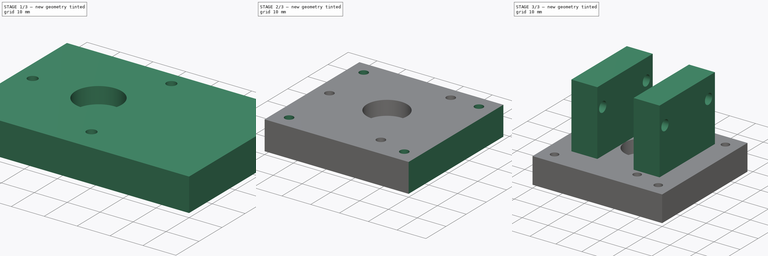
[diagram: build sequence overview — one tinted view per stage of 3, left to right]
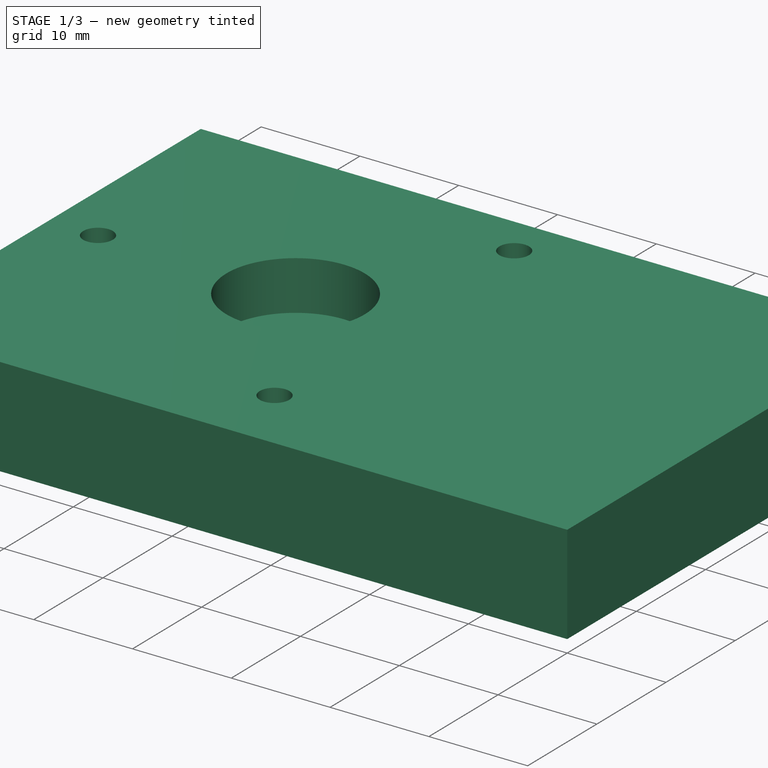
[diagram: stage 1 of 3 — iso view after this stage's code; geometry added in this stage tinted green]
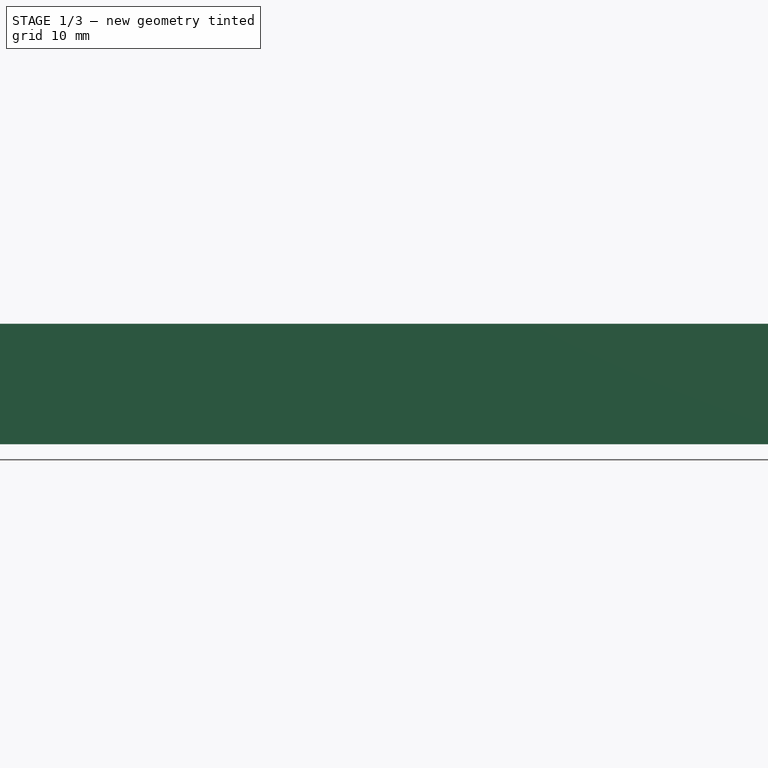
[diagram: stage 1 of 3 — front view after this stage's code; geometry added in this stage tinted green]
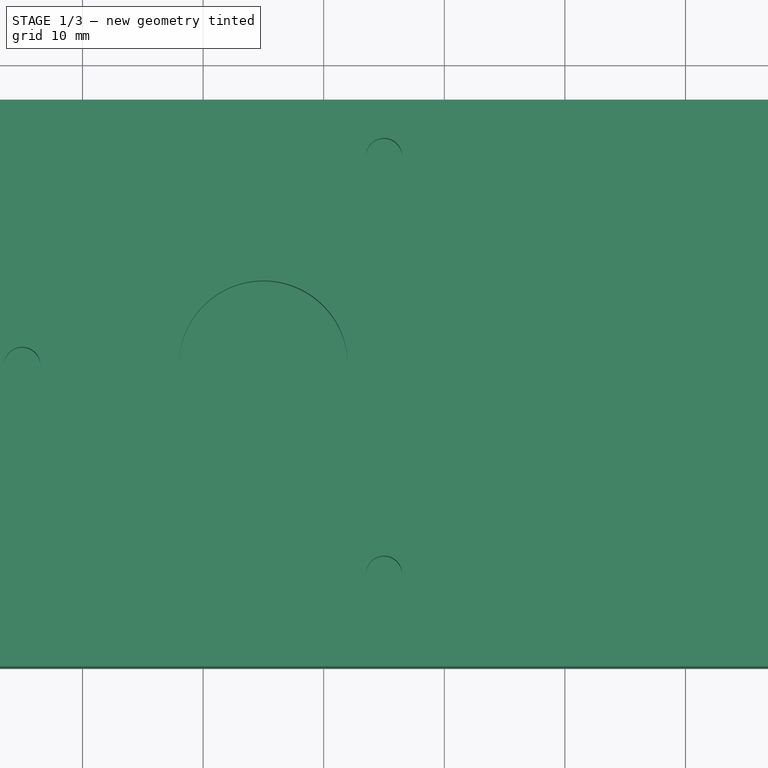
[diagram: stage 1 of 3 — top view after this stage's code; geometry added in this stage tinted green]
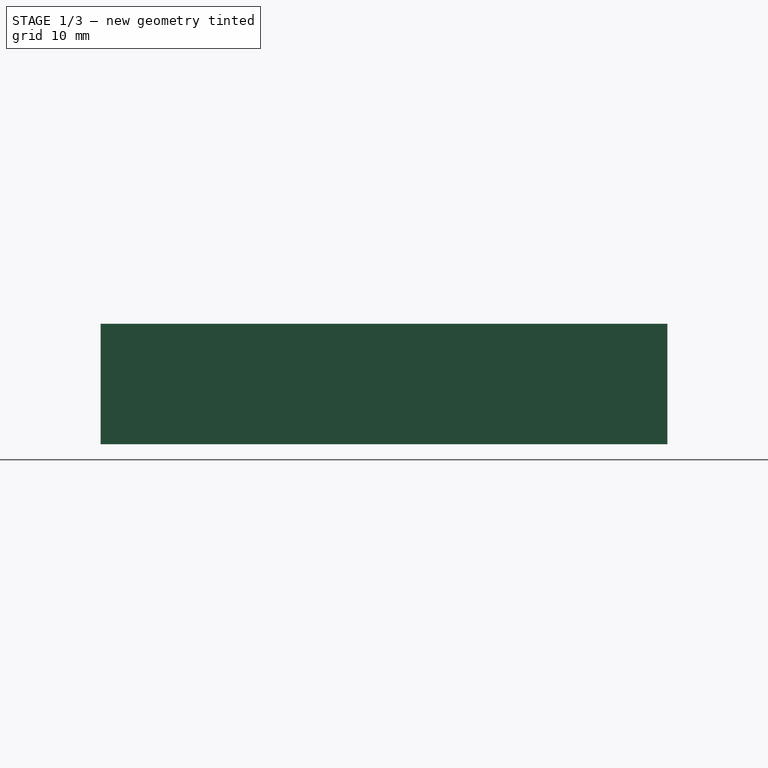
[diagram: stage 1 of 3 — right view after this stage's code; geometry added in this stage tinted green]
FCSTD DOCUMENT  (FreeCAD 0.16R6707 (Git))
Label: support_lanceur
License: All rights reserved
LicenseURL: http://en.wikipedia.org/wiki/All_rights_reserved
objects: Sketcher::SketchObject×5, PartDesign::Pocket×3, PartDesign::Pad×2
note: 15 computed .brp shape members not serialized (recipe doc carries the construction recipe); baked Part::Feature solids carry a one-line shape summary decoded from their .brp

FEATURE [Sketcher::SketchObject] Sketch
  sketch-geometry (4):
    g0: LineSegment StartX=0 StartY=0 StartZ=0 EndX=70 EndY=0 EndZ=0
    g1: LineSegment StartX=70 StartY=0 StartZ=0 EndX=70 EndY=47 EndZ=0
    g2: LineSegment StartX=70 StartY=47 StartZ=0 EndX=0 EndY=47 EndZ=0
    g3: LineSegment StartX=0 StartY=47 StartZ=0 EndX=0 EndY=0 EndZ=0
  constraints (11):
    c: Coincident(g0,g1)
    c: Coincident(g1,g2)
    c: Coincident(g2,g3)
    c: Coincident(g3,g0)
    c: Horizontal(g0)
    c: Horizontal(g2)
    c: Vertical(g1)
    c: Vertical(g3)
    c: Coincident(g0,g-1)
    c: Distance(g3) = 47
    c: Distance(g2) = 70
FEATURE [PartDesign::Pad] Pad
  Length = 10
  Length2 = 100
  Sketch = -> Sketch
  Type = 0
FEATURE [Sketcher::SketchObject] Sketch001
  Placement = pos=(0,0,10) rot=(0,0,1;0rad)
  Support = -> Pad [Face6]
  sketch-geometry (7):
    g0: Circle CenterX=25 CenterY=25 CenterZ=0 NormalX=0 NormalY=0 NormalZ=1 Radius=7
    g1: Circle CenterX=5 CenterY=25 CenterZ=0 NormalX=0 NormalY=0 NormalZ=1 Radius=1.5
    g2: Circle CenterX=35 CenterY=42.3205 CenterZ=0 NormalX=0 NormalY=0 NormalZ=1 Radius=1.5
    g3: Circle CenterX=35 CenterY=7.67949 CenterZ=0 NormalX=0 NormalY=0 NormalZ=1 Radius=1.5
    g4: LineSegment [constr] StartX=5 StartY=25 StartZ=0 EndX=25 EndY=25 EndZ=0
    g5: LineSegment [constr] StartX=25 StartY=25 StartZ=0 EndX=35 EndY=42.3205 EndZ=0
    g6: LineSegment [constr] StartX=25 StartY=25 StartZ=0 EndX=35 EndY=7.67949 EndZ=0
  constraints (18):
    c: DistanceY(g0) = 25
    c: DistanceX(g0) = 25
    c: Radius(g0) = 7
    c: Coincident(g4,g1)
    c: Coincident(g4,g0)
    c: Horizontal(g4)
    c: Coincident(g5,g0)
    c: Coincident(g5,g2)
    c: Coincident(g6,g0)
    c: Coincident(g6,g3)
    c: Angle(g5,g4) = 2.0944
    c: Angle(g6,g5) = 2.0944
    c: Distance(g4) = 20
    c: Distance(g5) = 20
    c: Distance(g6) = 20
    c: Radius(g1) = 1.5
    c: Equal(g1,g2)
    c: Equal(g1,g3)
FEATURE [PartDesign::Pocket] Pocket
  Length = 5
  Sketch = -> Sketch001
  Type = 0
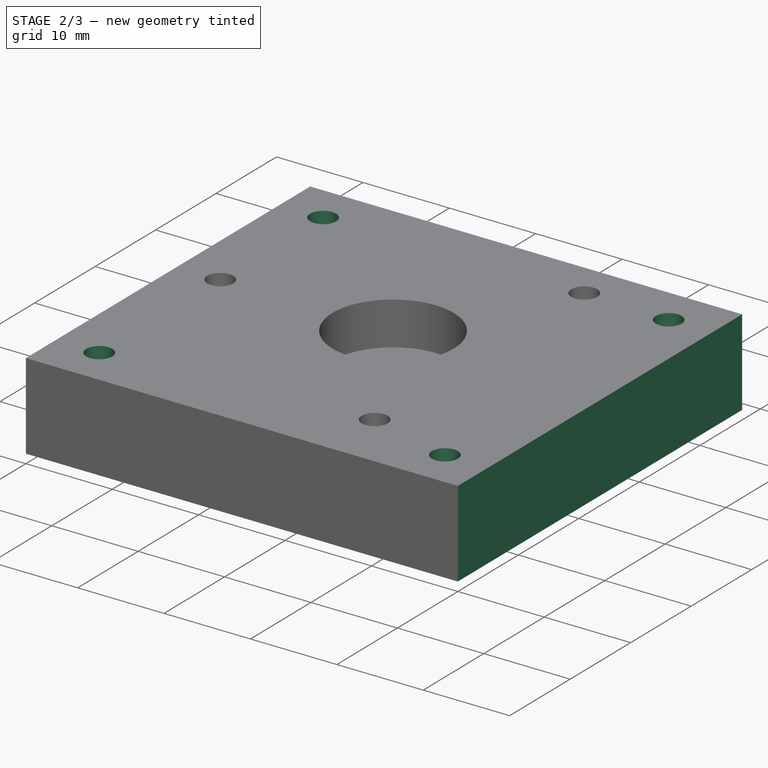
[diagram: stage 2 of 3 — iso view after this stage's code; geometry added in this stage tinted green]
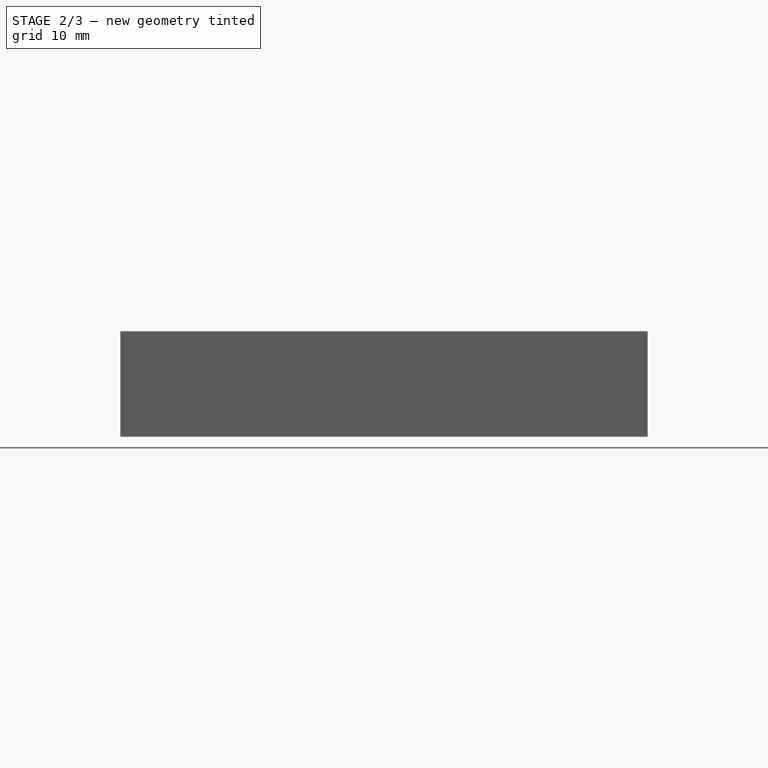
[diagram: stage 2 of 3 — front view after this stage's code; geometry added in this stage tinted green]
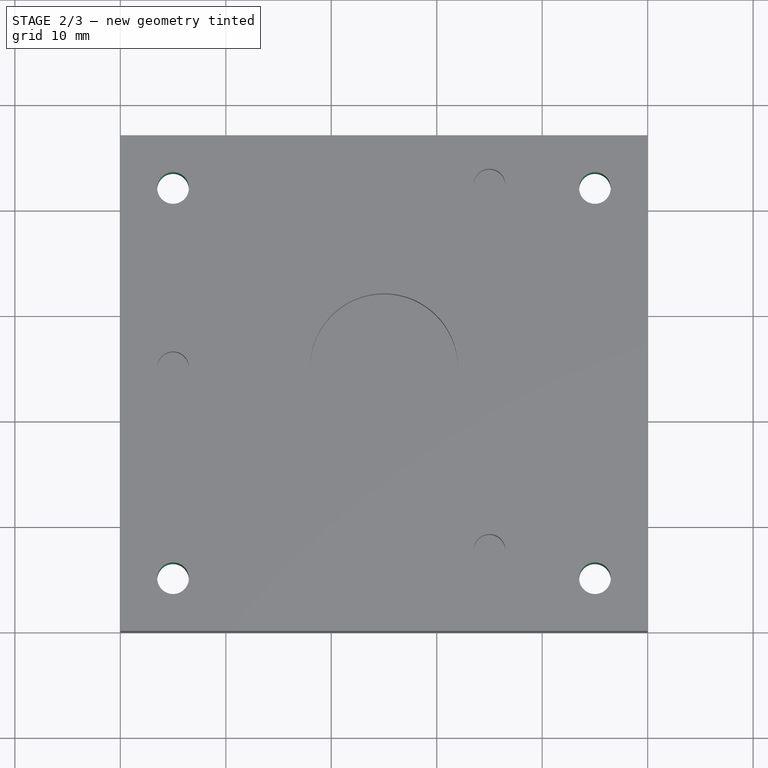
[diagram: stage 2 of 3 — top view after this stage's code; geometry added in this stage tinted green]
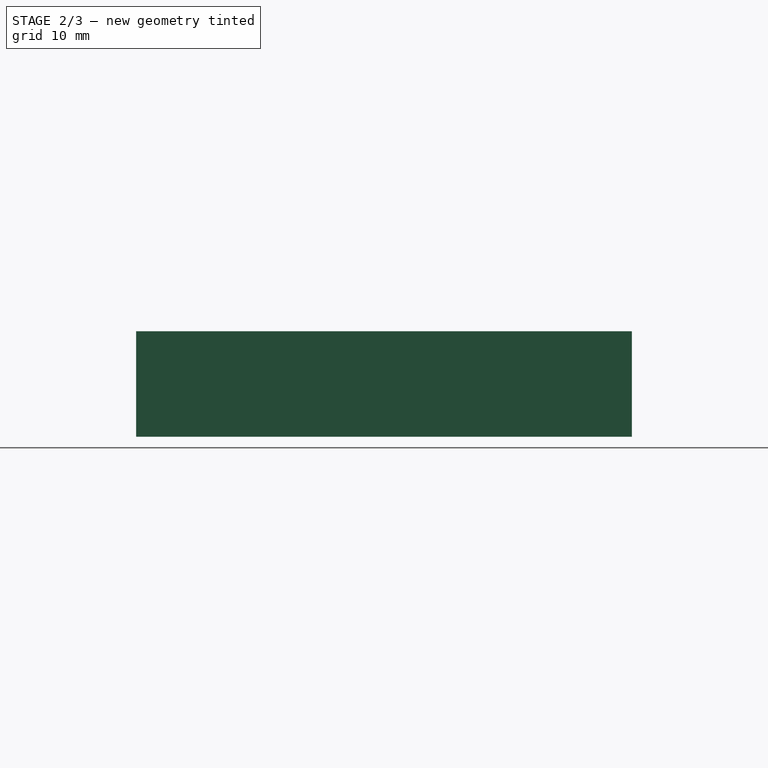
[diagram: stage 2 of 3 — right view after this stage's code; geometry added in this stage tinted green]
FEATURE [Sketcher::SketchObject] Sketch002
  Placement = pos=(0,0,10) rot=(0,0,1;0rad)
  Support = -> Pocket [Face5]
  sketch-geometry (10):
    g0: LineSegment StartX=70 StartY=50 StartZ=0 EndX=50 EndY=50 EndZ=0
    g1: LineSegment StartX=50 StartY=50 StartZ=0 EndX=50 EndY=-20 EndZ=0
    g2: LineSegment StartX=50 StartY=-20 StartZ=0 EndX=70 EndY=-20 EndZ=0
    g3: LineSegment StartX=70 StartY=-20 StartZ=0 EndX=70 EndY=50 EndZ=0
    g4: GeomPoint [constr] X=0 Y=47 Z=0
    g5: Circle CenterX=5 CenterY=42 CenterZ=0 NormalX=0 NormalY=0 NormalZ=1 Radius=1.5
    g6: Circle CenterX=5 CenterY=5 CenterZ=0 NormalX=0 NormalY=0 NormalZ=1 Radius=1.5
    g7: Circle CenterX=45 CenterY=5 CenterZ=0 NormalX=0 NormalY=0 NormalZ=1 Radius=1.5
    g8: Circle CenterX=45 CenterY=42 CenterZ=0 NormalX=0 NormalY=0 NormalZ=1 Radius=1.5
    g9: GeomPoint [constr] X=50 Y=0 Z=0
  constraints (28):
    c: Coincident(g0,g1)
    c: Coincident(g1,g2)
    c: Coincident(g2,g3)
    c: Coincident(g3,g0)
    c: Horizontal(g0)
    c: Horizontal(g2)
    c: Vertical(g1)
    c: Vertical(g3)
    c: DistanceX(g0) = 70
    c: DistanceY(g0) = 50
    c: Distance(g1) = 70
    c: Distance(g2) = 20
    c: PointOnObject(g4,g-2)
    c: DistanceY(g4) = 47
    c: Radius(g7) = 1.5
    c: Equal(g7,g6)
    c: Equal(g7,g5)
    c: DistanceX(g5) = 5
    c: DistanceY(g5,g4) = 5
    c: DistanceX(g6) = 5
    c: DistanceY(g6) = 5
    c: DistanceY(g7) = 5
    c: Radius(g8) = 1.5
    c: DistanceY(g5,g8) = 0
    c: DistanceX(g8,g7) = 0
    c: PointOnObject(g9,g-1)
    c: DistanceX(g9) = 50
    c: DistanceX(g7,g9) = 5
FEATURE [PartDesign::Pocket] Pocket001
  Length = 5
  Sketch = -> Sketch002
  Type = 1
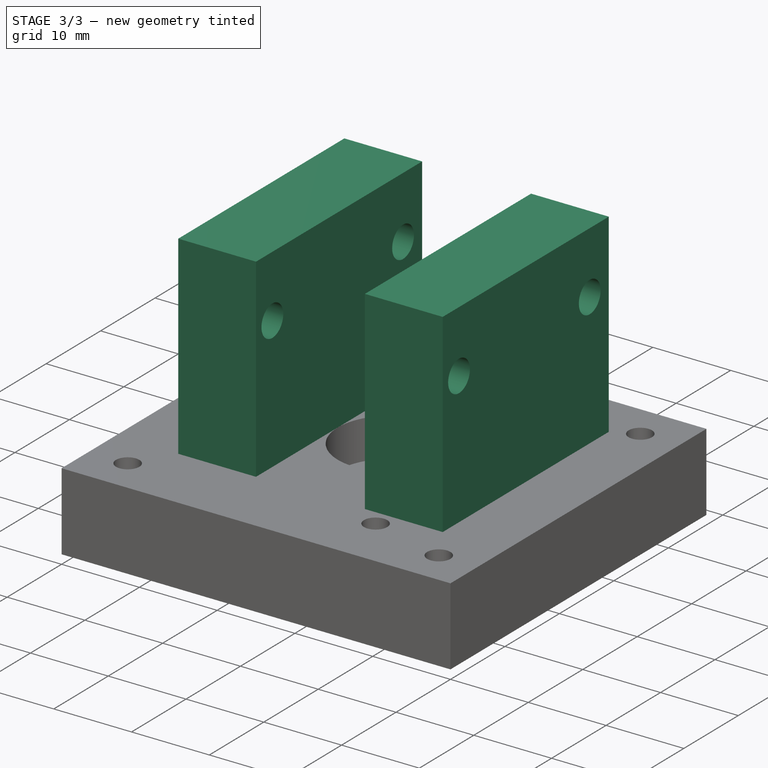
[diagram: stage 3 of 3 — iso view after this stage's code; geometry added in this stage tinted green]
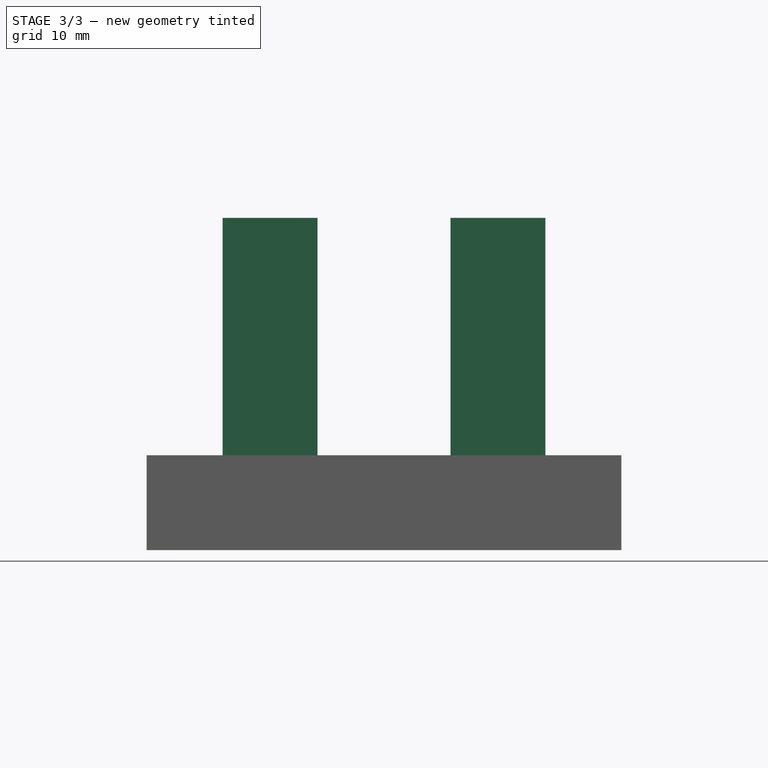
[diagram: stage 3 of 3 — front view after this stage's code; geometry added in this stage tinted green]
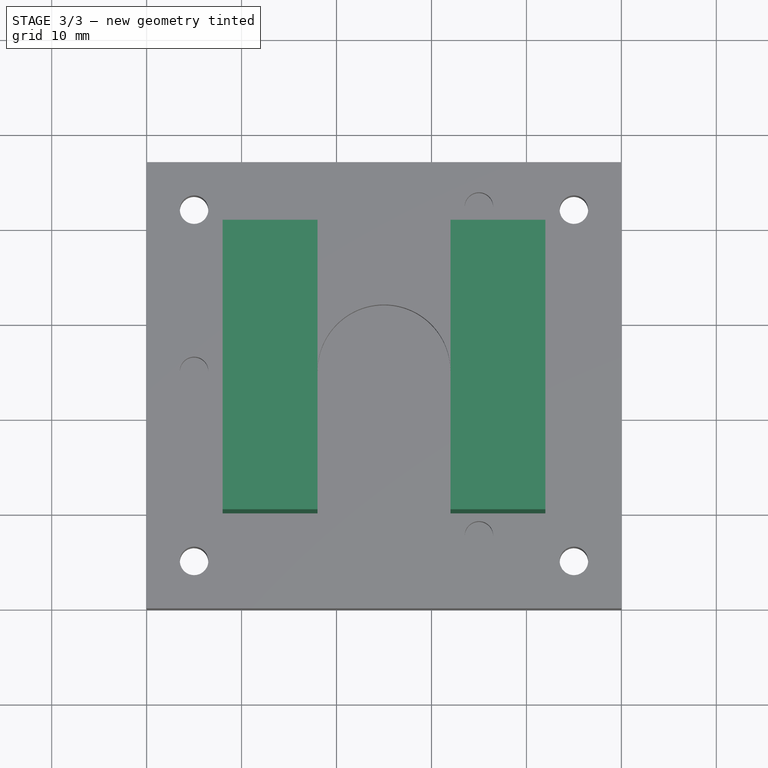
[diagram: stage 3 of 3 — top view after this stage's code; geometry added in this stage tinted green]
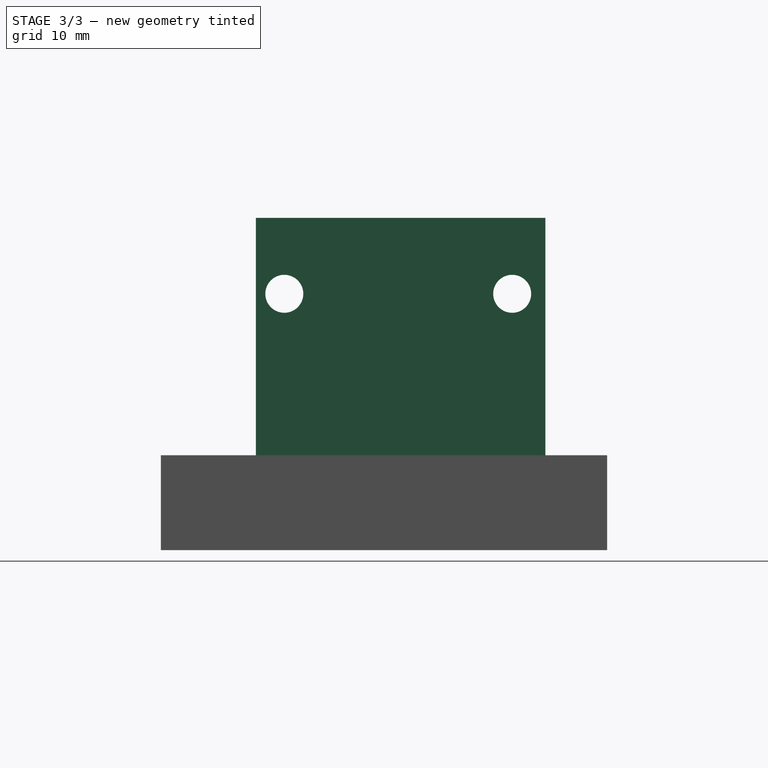
[diagram: stage 3 of 3 — right view after this stage's code; geometry added in this stage tinted green]
FEATURE [Sketcher::SketchObject] Sketch003
  Placement = pos=(0,0,10) rot=(0,0,1;0rad)
  Support = -> Pocket001 [Face4]
  sketch-geometry (10):
    g0: LineSegment StartX=8 StartY=40.5 StartZ=0 EndX=18 EndY=40.5 EndZ=0
    g1: LineSegment StartX=18 StartY=40.5 StartZ=0 EndX=18 EndY=10 EndZ=0
    g2: LineSegment StartX=18 StartY=10 StartZ=0 EndX=8 EndY=10 EndZ=0
    g3: LineSegment StartX=8 StartY=10 StartZ=0 EndX=8 EndY=40.5 EndZ=0
    g4: LineSegment StartX=32 StartY=40.5 StartZ=0 EndX=42 EndY=40.5 EndZ=0
    g5: LineSegment StartX=42 StartY=40.5 StartZ=0 EndX=42 EndY=10 EndZ=0
    g6: LineSegment StartX=42 StartY=10 StartZ=0 EndX=32 EndY=10 EndZ=0
    g7: LineSegment StartX=32 StartY=10 StartZ=0 EndX=32 EndY=40.5 EndZ=0
    g8: GeomPoint [constr] X=0 Y=23.5 Z=0
    g9: GeomPoint [constr] X=25 Y=23.5 Z=0
  constraints (28):
    c: Coincident(g0,g1)
    c: Coincident(g1,g2)
    c: Coincident(g2,g3)
    c: Coincident(g3,g0)
    c: Horizontal(g0)
    c: Horizontal(g2)
    c: Vertical(g1)
    c: Vertical(g3)
    c: Coincident(g4,g5)
    c: Coincident(g5,g6)
    c: Coincident(g6,g7)
    c: Coincident(g7,g4)
    c: Horizontal(g4)
    c: Horizontal(g6)
    c: Vertical(g5)
    c: Vertical(g7)
    c: DistanceY(g0,g4) = 0
    c: DistanceY(g1,g6) = 0
    c: Distance(g0) = 10
    c: Distance(g4) = 10
    c: Distance(g1) = 30.5
    c: DistanceY(g8) = 23.5
    c: DistanceX(g8) = 0
    c: DistanceY(g8,g0) = 17
    c: DistanceY(g9,g8) = 0
    c: DistanceX(g9) = 25
    c: DistanceX(g0,g9) = 7
    c: DistanceX(g9,g4) = 7
FEATURE [PartDesign::Pad] Pad001
  Length = 25
  Length2 = 100
  Sketch = -> Sketch003
  Type = 0
FEATURE [Sketcher::SketchObject] Sketch005
  Placement = pos=(42,0,0) rot=(0.57735,0.57735,0.57735;2.0944rad)
  Support = -> Pad001 [Face19]
  sketch-geometry (3):
    g0: Circle CenterX=13 CenterY=27 CenterZ=0 NormalX=0 NormalY=0 NormalZ=1 Radius=2
    g1: Circle CenterX=37 CenterY=27 CenterZ=0 NormalX=0 NormalY=0 NormalZ=1 Radius=2
    g2: GeomPoint [constr] X=25 Y=27 Z=0
  constraints (8):
    c: Radius(g0) = 2
    c: Equal(g0,g1)
    c: DistanceY(g0,g1) = 0
    c: DistanceY(g0) = 27
    c: DistanceX(g2) = 25
    c: DistanceY(g2) = 27
    c: DistanceX(g0,g2) = 12
    c: DistanceX(g2,g1) = 12
FEATURE [PartDesign::Pocket] Pocket002
  Length = 5
  Sketch = -> Sketch005
  Type = 1
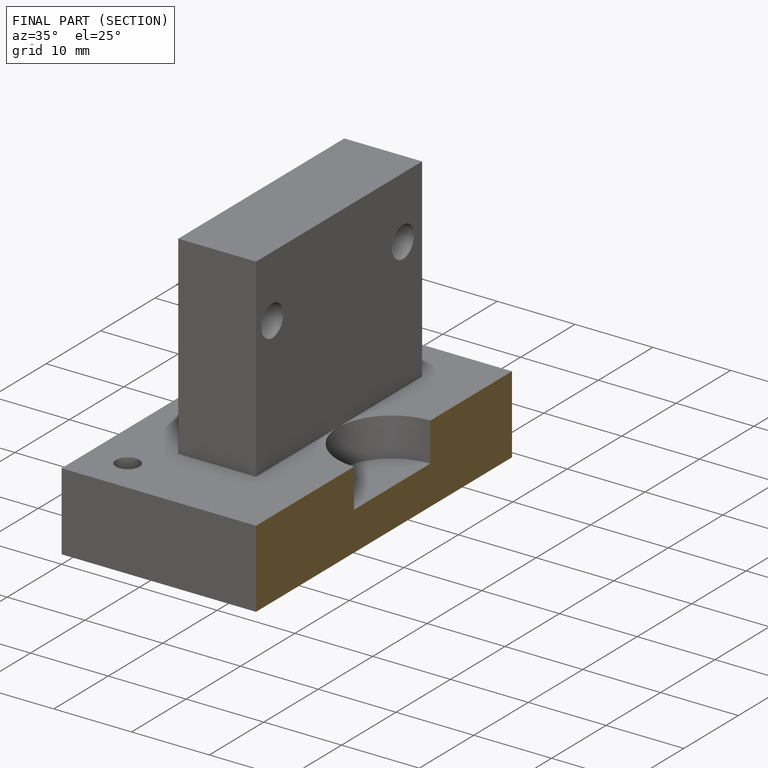
[diagram: finished part — half-section view (interior)]
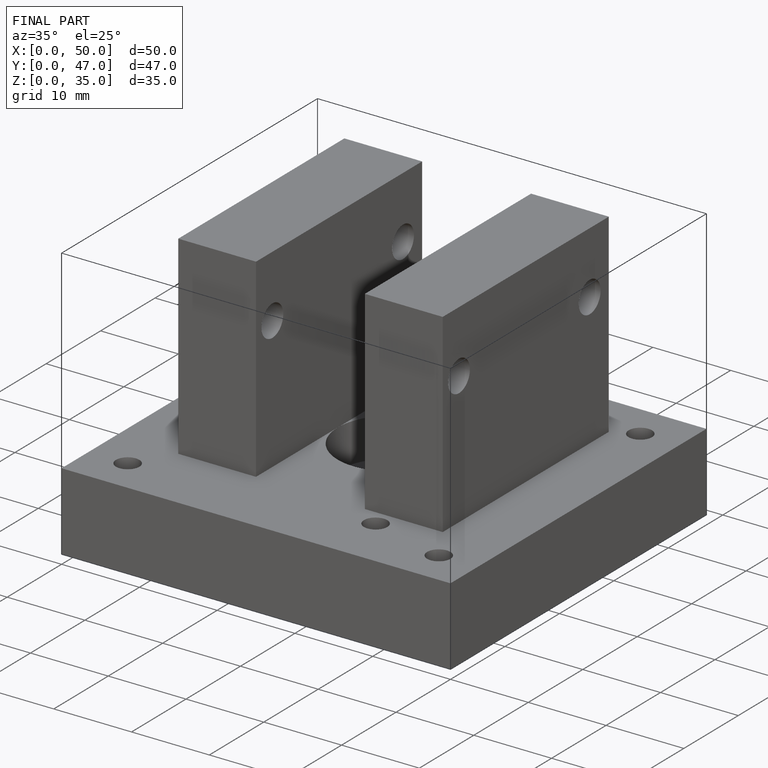
[diagram: finished part — iso view with bounding-box wireframe]
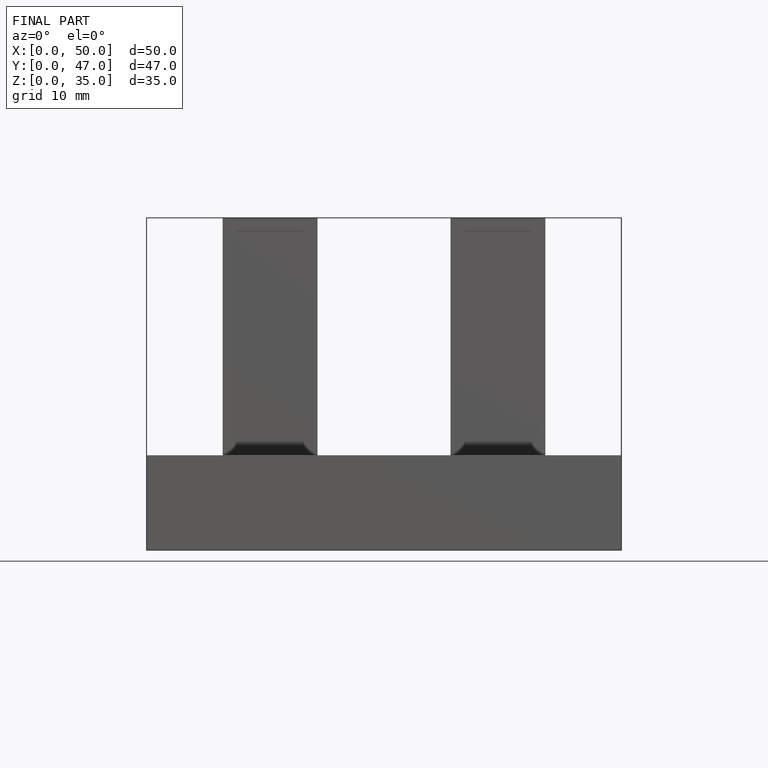
[diagram: finished part — front view with bounding-box wireframe]
